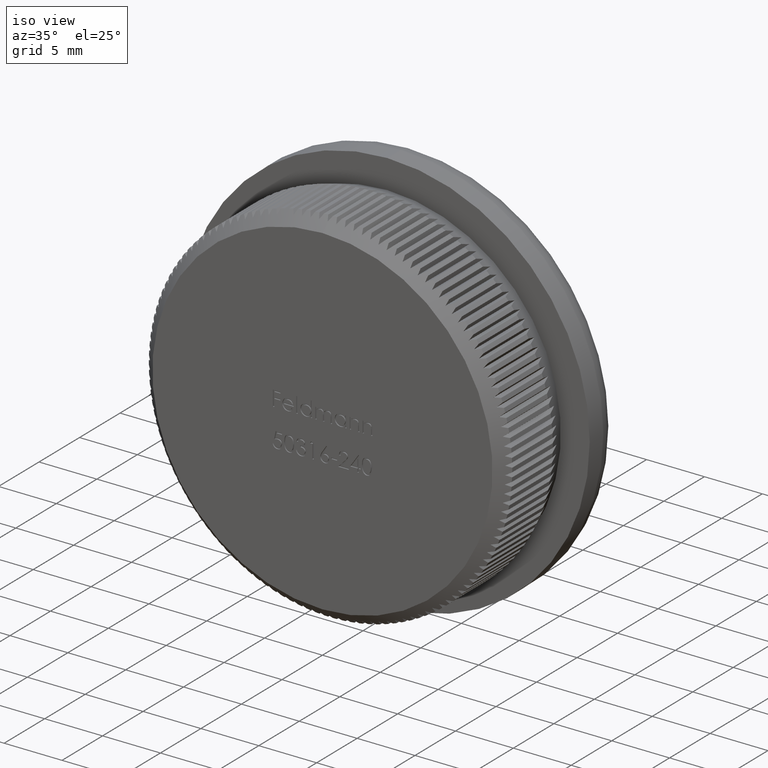
[diagram: clean part render]
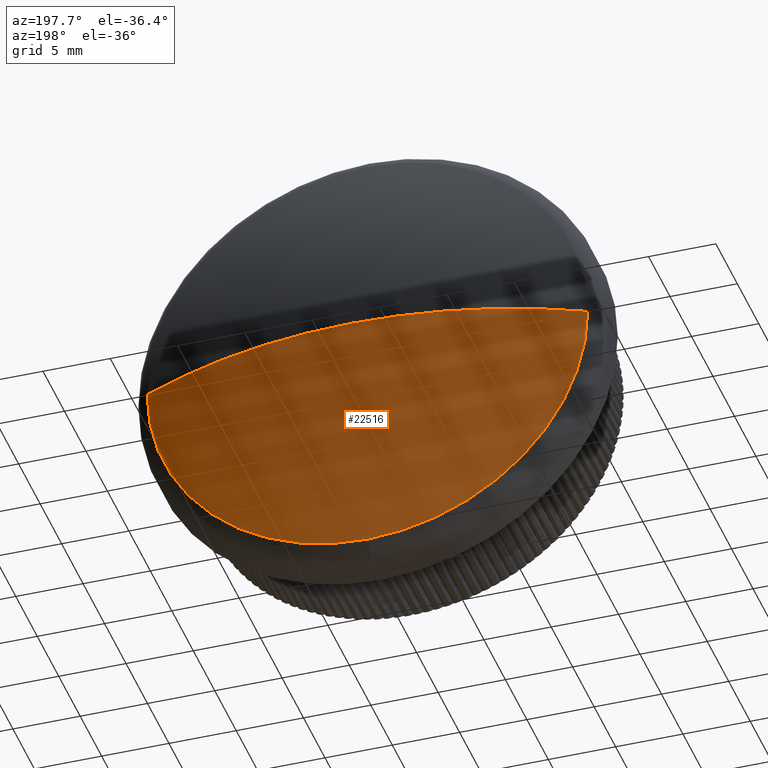
[diagram: tour spotlight — one face highlighted and labeled with its STEP entity id]
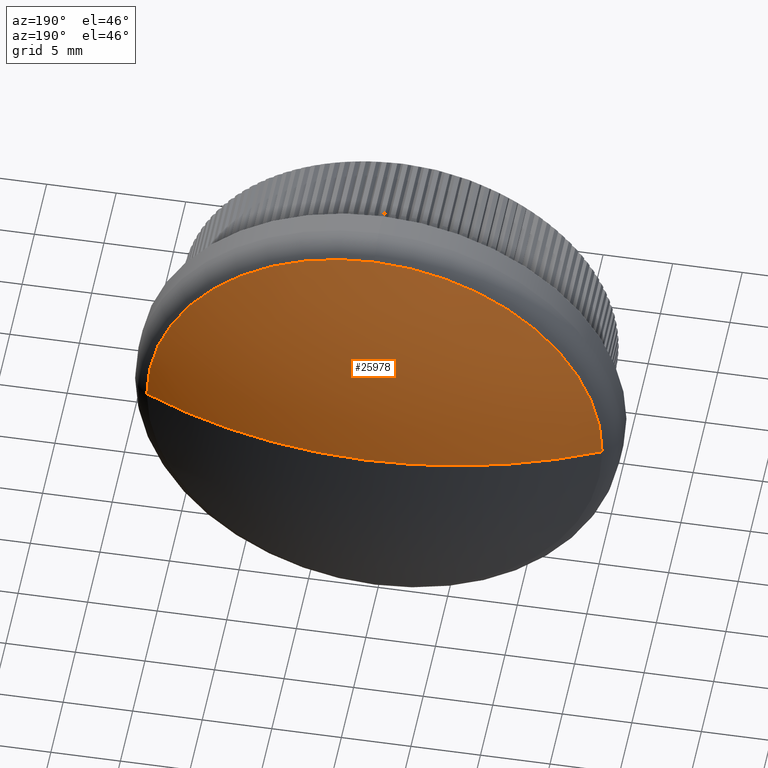
[diagram: tour spotlight — one face highlighted and labeled with its STEP entity id]
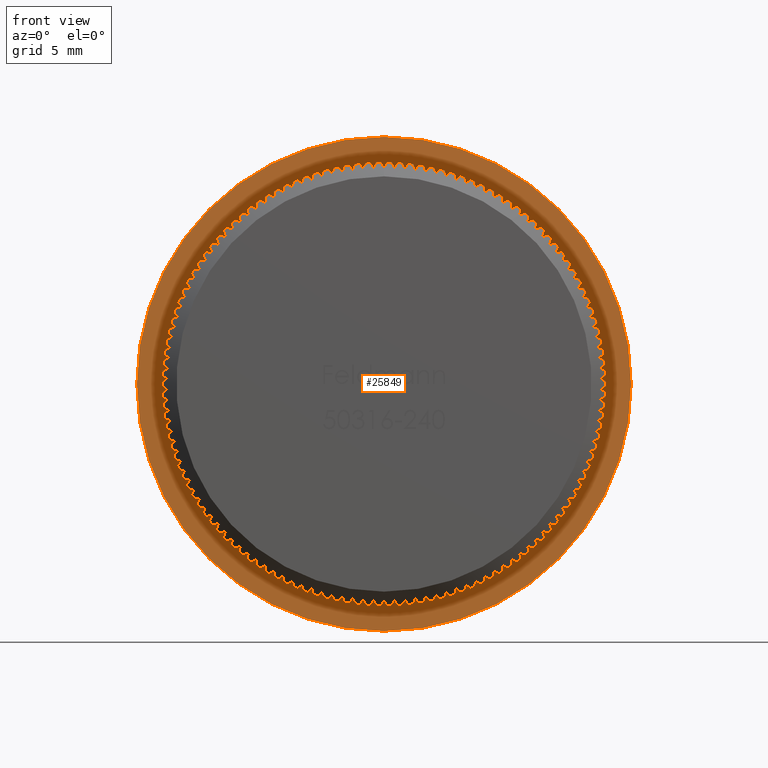
[diagram: tour spotlight — one face highlighted and labeled with its STEP entity id]
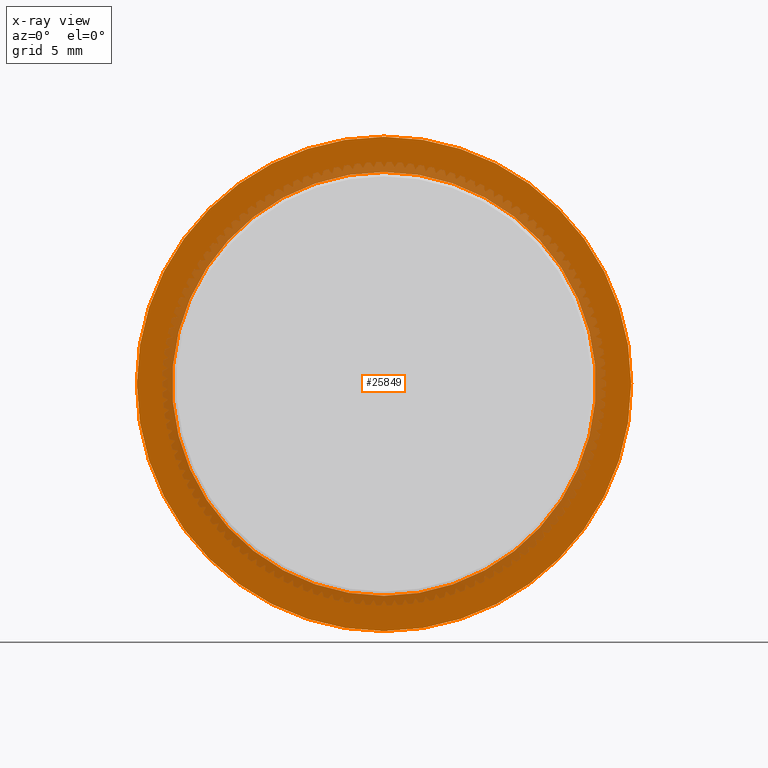
[diagram: x-ray of the same camera — body ghosted, this tour face saturated]
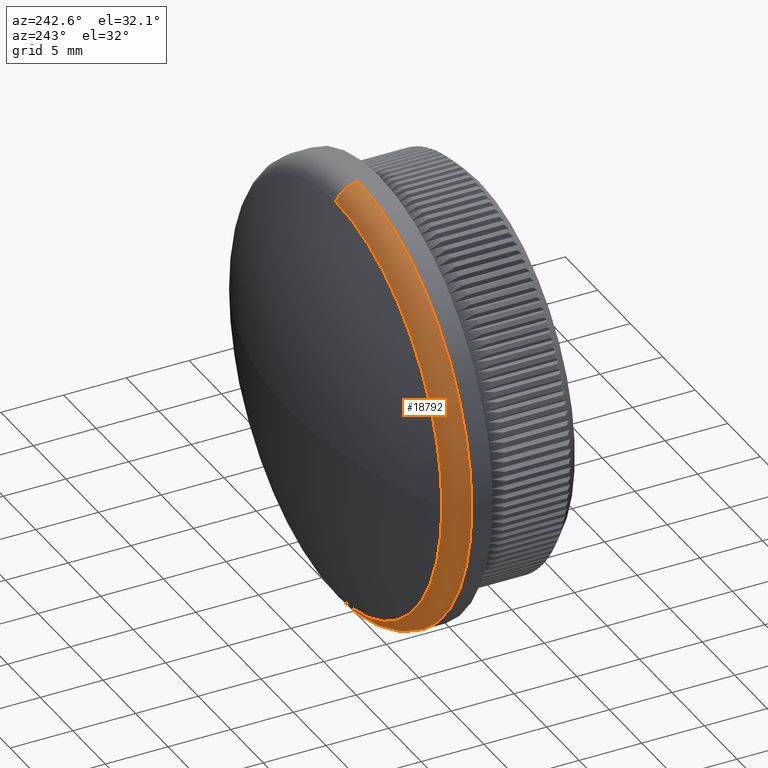
[diagram: tour spotlight — one face highlighted and labeled with its STEP entity id]
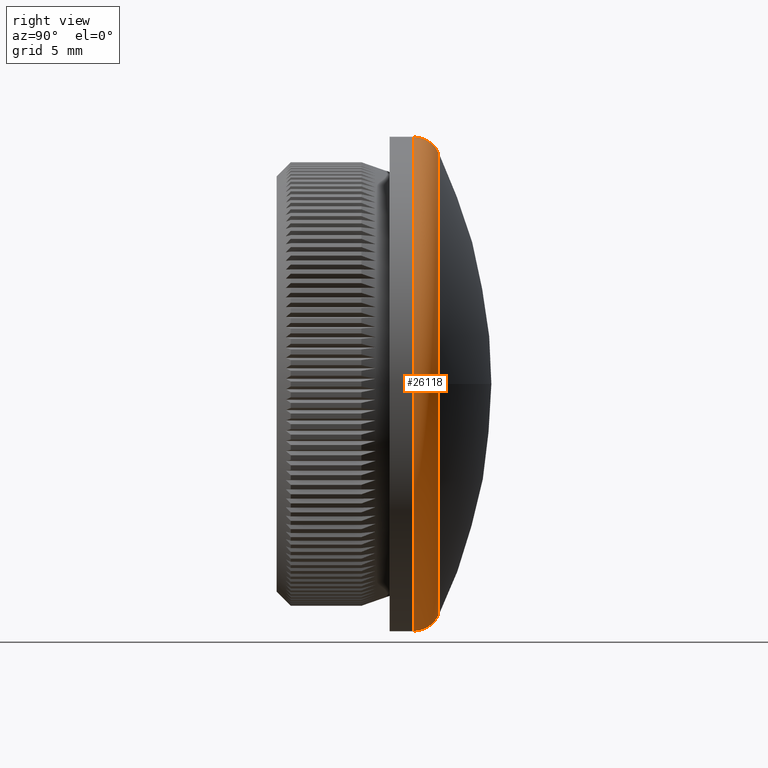
[diagram: tour spotlight — one face highlighted and labeled with its STEP entity id]
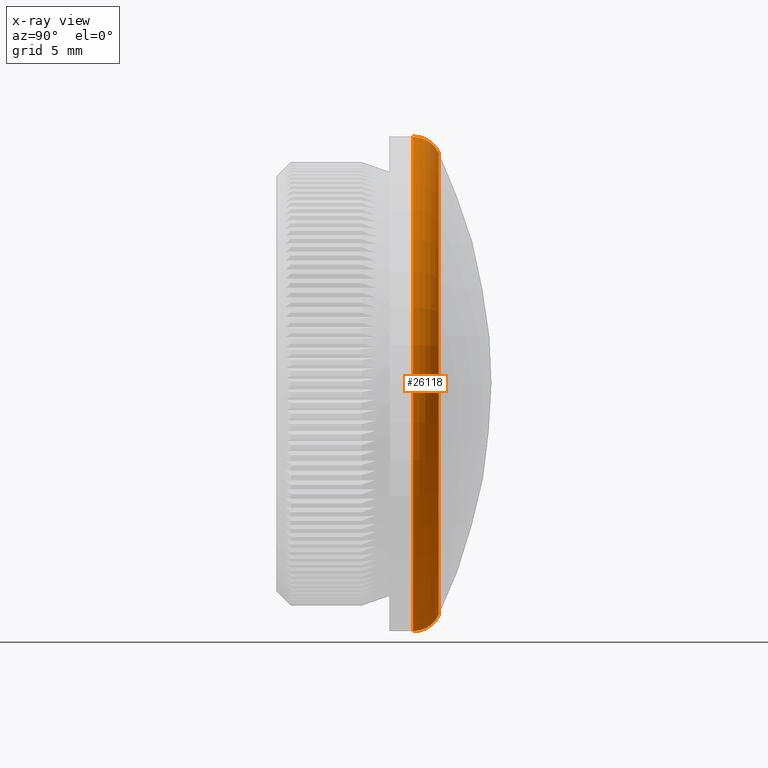
[diagram: x-ray of the same camera — body ghosted, this tour face saturated]
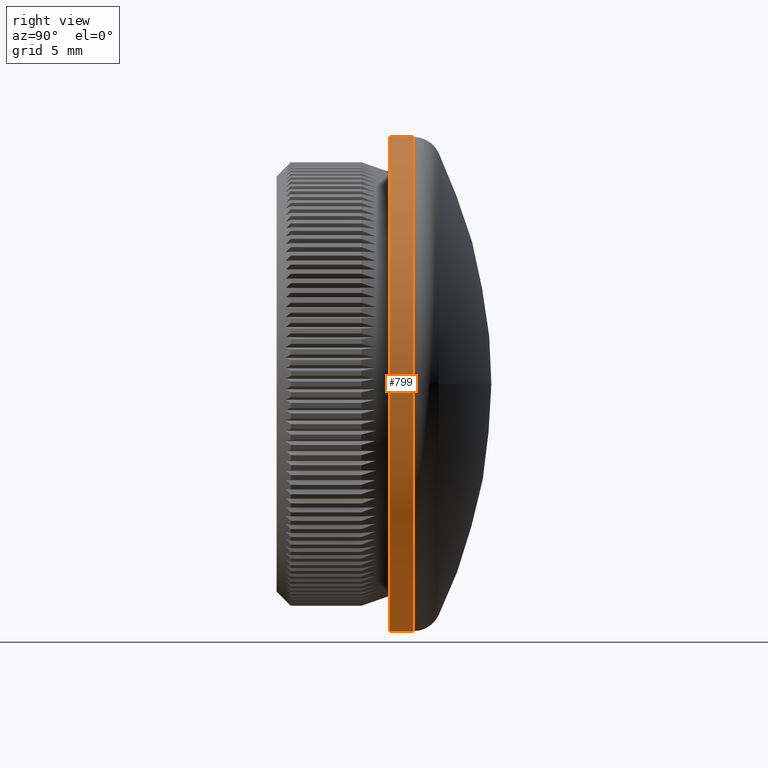
[diagram: tour spotlight — one face highlighted and labeled with its STEP entity id]
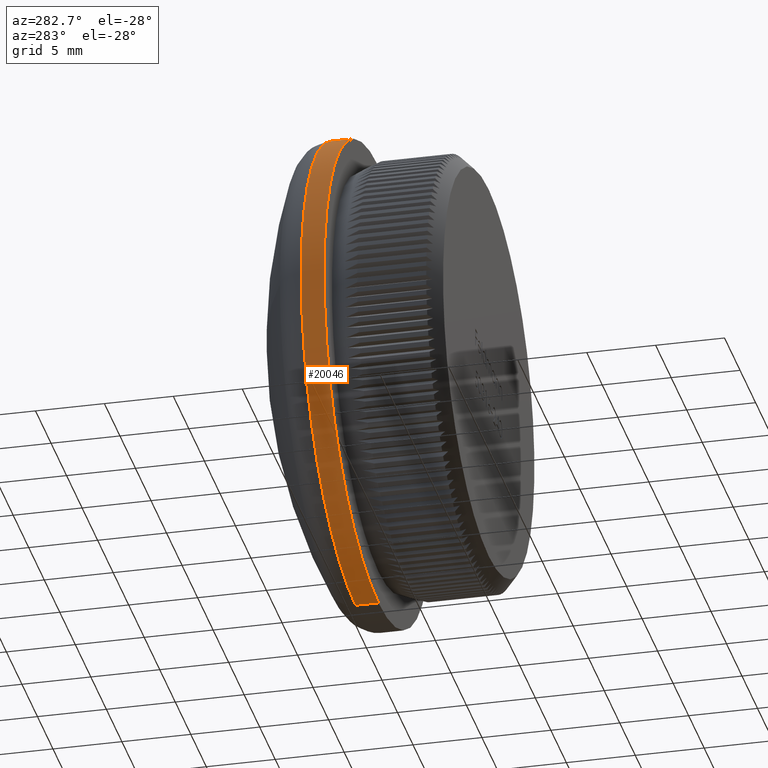
[diagram: tour spotlight — one face highlighted and labeled with its STEP entity id]
A machine part: a face-by-face anatomy tour. The part has 624 B-rep faces; the first image is the clean iso view, then the 7 largest visible faces are spotlighted one at a time (largest first), each with its STEP entity span.

Face 1 — auxiliary view, entity #22516. In plain terms, the highlighted spherical surface has radius 37.7605 mm.
Definition (entity closure, byte-faithful):
#971 = AXIS2_PLACEMENT_3D ( 'NONE', #16181, #3825, #7786 ) ;
#1554 = DIRECTION ( 'NONE',  ( 0.0000000000000000000, 0.0000000000000000000, -1.000000000000000000 ) ) ;
#1580 = ORIENTED_EDGE ( 'NONE', *, *, #24484, .T. ) ;
#3825 = DIRECTION ( 'NONE',  ( 1.224646799147353200E-016, -0.0000000000000000000, 1.000000000000000000 ) ) ;
#4260 = EDGE_CURVE ( 'NONE', #16829, #22731, #16046, .T. ) ;
#4436 = CARTESIAN_POINT ( 'NONE',  ( -16.36687910515705000, 11.46861060074418700, 2.004364610816228100E-015 ) ) ;
#4777 = SPHERICAL_SURFACE ( 'NONE', #22076, 37.76046511627907900 ) ;
#5413 = DIRECTION ( 'NONE',  ( 1.000000000000000000, 0.0000000000000000000, 0.0000000000000000000 ) ) ;
#5686 = CIRCLE ( 'NONE', #10601, 37.76046511627907900 ) ;
#7162 = VERTEX_POINT ( 'NONE', #23145 ) ;
#7786 = DIRECTION ( 'NONE',  ( 1.000000000000000000, 0.0000000000000000000, -1.224646799147353200E-016 ) ) ;
#7983 = DIRECTION ( 'NONE',  ( -1.000000000000000000, 0.0000000000000000000, 0.0000000000000000000 ) ) ;
#8258 = DIRECTION ( 'NONE',  ( 0.0000000000000000000, 0.0000000000000000000, -1.000000000000000000 ) ) ;
#8409 = CIRCLE ( 'NONE', #13013, 16.36687910515705000 ) ;
#9221 = ORIENTED_EDGE ( 'NONE', *, *, #4260, .T. ) ;
#10447 = CARTESIAN_POINT ( 'NONE',  ( 16.36687910515705000, 11.46861060074418700, 0.0000000000000000000 ) ) ;
#10601 = AXIS2_PLACEMENT_3D ( 'NONE', #16111, #8258, #7983 ) ;
#12440 = AXIS2_PLACEMENT_3D ( 'NONE', #23169, #21450, #19133 ) ;
#13013 = AXIS2_PLACEMENT_3D ( 'NONE', #15876, #23748, #1554 ) ;
#13549 = ORIENTED_EDGE ( 'NONE', *, *, #21309, .F. ) ;
#14720 = FACE_OUTER_BOUND ( 'NONE', #21016, .T. ) ;
#15876 = CARTESIAN_POINT ( 'NONE',  ( 0.0000000000000000000, 11.46861060074418700, 0.0000000000000000000 ) ) ;
#16046 = CIRCLE ( 'NONE', #12440, 16.36687910515705000 ) ;
#16111 = CARTESIAN_POINT ( 'NONE',  ( 0.0000000000000000000, -22.56046511627907900, 0.0000000000000000000 ) ) ;
#16181 = CARTESIAN_POINT ( 'NONE',  ( 0.0000000000000000000, -22.56046511627907900, 0.0000000000000000000 ) ) ;
#16443 = ORIENTED_EDGE ( 'NONE', *, *, #25428, .T. ) ;
#16829 = VERTEX_POINT ( 'NONE', #18148 ) ;
#18148 = CARTESIAN_POINT ( 'NONE',  ( 0.0000000000000000000, 11.46861060074418700, -16.36687910515705000 ) ) ;
#19043 = VERTEX_POINT ( 'NONE', #10447 ) ;
#19133 = DIRECTION ( 'NONE',  ( 0.0000000000000000000, 0.0000000000000000000, -1.000000000000000000 ) ) ;
#21016 = EDGE_LOOP ( 'NONE', ( #13549, #1580, #16443, #9221 ) ) ;
#21159 = CIRCLE ( 'NONE', #971, 37.76046511627907900 ) ;
#21309 = EDGE_CURVE ( 'NONE', #7162, #22731, #21159, .T. ) ;
#21438 = DIRECTION ( 'NONE',  ( 0.0000000000000000000, 0.0000000000000000000, 1.000000000000000000 ) ) ;
#21450 = DIRECTION ( 'NONE',  ( 0.0000000000000000000, 1.000000000000000000, 0.0000000000000000000 ) ) ;
#22076 = AXIS2_PLACEMENT_3D ( 'NONE', #23410, #21438, #5413 ) ;
#22516 = ADVANCED_FACE ( 'NONE', ( #14720 ), #4777, .T. ) ;
#22731 = VERTEX_POINT ( 'NONE', #4436 ) ;
#23145 = CARTESIAN_POINT ( 'NONE',  ( 2.312161636948322900E-015, 15.19999999999999800, 0.0000000000000000000 ) ) ;
#23169 = CARTESIAN_POINT ( 'NONE',  ( 0.0000000000000000000, 11.46861060074418700, 0.0000000000000000000 ) ) ;
#23410 = CARTESIAN_POINT ( 'NONE',  ( 0.0000000000000000000, -22.56046511627907900, 0.0000000000000000000 ) ) ;
#23748 = DIRECTION ( 'NONE',  ( 0.0000000000000000000, 1.000000000000000000, 0.0000000000000000000 ) ) ;
#24484 = EDGE_CURVE ( 'NONE', #7162, #19043, #5686, .T. ) ;
#25428 = EDGE_CURVE ( 'NONE', #19043, #16829, #8409, .T. ) ;

Face 2 — auxiliary view, entity #25978. In plain terms, the highlighted spherical surface has radius 37.7605 mm.
Definition (entity closure, byte-faithful):
#341 = ORIENTED_EDGE ( 'NONE', *, *, #25601, .T. ) ;
#464 = AXIS2_PLACEMENT_3D ( 'NONE', #2945, #23257, #2851 ) ;
#971 = AXIS2_PLACEMENT_3D ( 'NONE', #16181, #3825, #7786 ) ;
#1322 = SPHERICAL_SURFACE ( 'NONE', #19508, 37.76046511627907900 ) ;
#2851 = DIRECTION ( 'NONE',  ( 0.0000000000000000000, 0.0000000000000000000, -1.000000000000000000 ) ) ;
#2945 = CARTESIAN_POINT ( 'NONE',  ( 0.0000000000000000000, 11.46861060074418700, 0.0000000000000000000 ) ) ;
#3568 = VERTEX_POINT ( 'NONE', #9476 ) ;
#3825 = DIRECTION ( 'NONE',  ( 1.224646799147353200E-016, -0.0000000000000000000, 1.000000000000000000 ) ) ;
#4436 = CARTESIAN_POINT ( 'NONE',  ( -16.36687910515705000, 11.46861060074418700, 2.004364610816228100E-015 ) ) ;
#5686 = CIRCLE ( 'NONE', #10601, 37.76046511627907900 ) ;
#7162 = VERTEX_POINT ( 'NONE', #23145 ) ;
#7786 = DIRECTION ( 'NONE',  ( 1.000000000000000000, 0.0000000000000000000, -1.224646799147353200E-016 ) ) ;
#7983 = DIRECTION ( 'NONE',  ( -1.000000000000000000, 0.0000000000000000000, 0.0000000000000000000 ) ) ;
#8258 = DIRECTION ( 'NONE',  ( 0.0000000000000000000, 0.0000000000000000000, -1.000000000000000000 ) ) ;
#9059 = CIRCLE ( 'NONE', #12668, 16.36687910515705000 ) ;
#9476 = CARTESIAN_POINT ( 'NONE',  ( 2.073748254662047800E-015, 11.46861060074418700, 16.36687910515705000 ) ) ;
#9669 = CIRCLE ( 'NONE', #464, 16.36687910515705000 ) ;
#9902 = DIRECTION ( 'NONE',  ( 0.0000000000000000000, 0.0000000000000000000, 1.000000000000000000 ) ) ;
#10447 = CARTESIAN_POINT ( 'NONE',  ( 16.36687910515705000, 11.46861060074418700, 0.0000000000000000000 ) ) ;
#10601 = AXIS2_PLACEMENT_3D ( 'NONE', #16111, #8258, #7983 ) ;
#12668 = AXIS2_PLACEMENT_3D ( 'NONE', #14373, #20366, #20273 ) ;
#13906 = CARTESIAN_POINT ( 'NONE',  ( 0.0000000000000000000, -22.56046511627907900, 0.0000000000000000000 ) ) ;
#14373 = CARTESIAN_POINT ( 'NONE',  ( 0.0000000000000000000, 11.46861060074418700, 0.0000000000000000000 ) ) ;
#16111 = CARTESIAN_POINT ( 'NONE',  ( 0.0000000000000000000, -22.56046511627907900, 0.0000000000000000000 ) ) ;
#16137 = DIRECTION ( 'NONE',  ( 1.000000000000000000, 0.0000000000000000000, 0.0000000000000000000 ) ) ;
#16181 = CARTESIAN_POINT ( 'NONE',  ( 0.0000000000000000000, -22.56046511627907900, 0.0000000000000000000 ) ) ;
#19043 = VERTEX_POINT ( 'NONE', #10447 ) ;
#19508 = AXIS2_PLACEMENT_3D ( 'NONE', #13906, #9902, #16137 ) ;
#19830 = ORIENTED_EDGE ( 'NONE', *, *, #24484, .F. ) ;
#20095 = ORIENTED_EDGE ( 'NONE', *, *, #24770, .T. ) ;
#20273 = DIRECTION ( 'NONE',  ( 0.0000000000000000000, 0.0000000000000000000, -1.000000000000000000 ) ) ;
#20366 = DIRECTION ( 'NONE',  ( 0.0000000000000000000, 1.000000000000000000, 0.0000000000000000000 ) ) ;
#21159 = CIRCLE ( 'NONE', #971, 37.76046511627907900 ) ;
#21309 = EDGE_CURVE ( 'NONE', #7162, #22731, #21159, .T. ) ;
#22731 = VERTEX_POINT ( 'NONE', #4436 ) ;
#22793 = FACE_OUTER_BOUND ( 'NONE', #25958, .T. ) ;
#23145 = CARTESIAN_POINT ( 'NONE',  ( 2.312161636948322900E-015, 15.19999999999999800, 0.0000000000000000000 ) ) ;
#23257 = DIRECTION ( 'NONE',  ( 0.0000000000000000000, 1.000000000000000000, 0.0000000000000000000 ) ) ;
#24484 = EDGE_CURVE ( 'NONE', #7162, #19043, #5686, .T. ) ;
#24770 = EDGE_CURVE ( 'NONE', #22731, #3568, #9669, .T. ) ;
#25601 = EDGE_CURVE ( 'NONE', #3568, #19043, #9059, .T. ) ;
#25958 = EDGE_LOOP ( 'NONE', ( #19830, #26525, #20095, #341 ) ) ;
#25978 = ADVANCED_FACE ( 'NONE', ( #22793 ), #1322, .T. ) ;
#26525 = ORIENTED_EDGE ( 'NONE', *, *, #21309, .T. ) ;

Face 3 — front view, entity #25849. An x-ray twin of the same camera follows (body ghosted, this face saturated) — the face is partly hidden behind the body. In plain terms, the highlighted planar face has unit normal (0, -1, -0).
Definition (entity closure, byte-faithful):
#1292 = DIRECTION ( 'NONE',  ( 0.0000000000000000000, 0.0000000000000000000, -1.000000000000000000 ) ) ;
#1364 = CARTESIAN_POINT ( 'NONE',  ( 0.0000000000000000000, 8.000000000000000000, 0.0000000000000000000 ) ) ;
#1378 = PLANE ( 'NONE',  #2028 ) ;
#2028 = AXIS2_PLACEMENT_3D ( 'NONE', #23937, #19717, #1292 ) ;
#3591 = CIRCLE ( 'NONE', #14663, 15.00000000000000000 ) ;
#3669 = CIRCLE ( 'NONE', #9786, 17.50000000000000000 ) ;
#6263 = ORIENTED_EDGE ( 'NONE', *, *, #24410, .T. ) ;
#6793 = FACE_OUTER_BOUND ( 'NONE', #14042, .T. ) ;
#8419 = CARTESIAN_POINT ( 'NONE',  ( 0.0000000000000000000, 8.000000000000000000, 0.0000000000000000000 ) ) ;
#9600 = DIRECTION ( 'NONE',  ( 0.0000000000000000000, 0.0000000000000000000, -1.000000000000000000 ) ) ;
#9786 = AXIS2_PLACEMENT_3D ( 'NONE', #1364, #11658, #13440 ) ;
#9946 = ORIENTED_EDGE ( 'NONE', *, *, #10581, .T. ) ;
#10577 = VERTEX_POINT ( 'NONE', #18826 ) ;
#10581 = EDGE_CURVE ( 'NONE', #16179, #21092, #3669, .T. ) ;
#11222 = EDGE_CURVE ( 'NONE', #10577, #12666, #13273, .T. ) ;
#11658 = DIRECTION ( 'NONE',  ( -0.0000000000000000000, -1.000000000000000000, -0.0000000000000000000 ) ) ;
#12204 = CARTESIAN_POINT ( 'NONE',  ( 0.0000000000000000000, 8.000000000000000000, -17.50000000000000000 ) ) ;
#12666 = VERTEX_POINT ( 'NONE', #24882 ) ;
#13273 = CIRCLE ( 'NONE', #13366, 15.00000000000000000 ) ;
#13366 = AXIS2_PLACEMENT_3D ( 'NONE', #8419, #24789, #22651 ) ;
#13440 = DIRECTION ( 'NONE',  ( 0.0000000000000000000, 0.0000000000000000000, -1.000000000000000000 ) ) ;
#14042 = EDGE_LOOP ( 'NONE', ( #9946, #6263 ) ) ;
#14547 = DIRECTION ( 'NONE',  ( 0.0000000000000000000, 0.0000000000000000000, -1.000000000000000000 ) ) ;
#14663 = AXIS2_PLACEMENT_3D ( 'NONE', #20540, #18913, #14547 ) ;
#16024 = CARTESIAN_POINT ( 'NONE',  ( 0.0000000000000000000, 8.000000000000000000, 0.0000000000000000000 ) ) ;
#16179 = VERTEX_POINT ( 'NONE', #12204 ) ;
#16569 = CIRCLE ( 'NONE', #20539, 17.50000000000000000 ) ;
#16919 = EDGE_LOOP ( 'NONE', ( #22528, #18940 ) ) ;
#16997 = CARTESIAN_POINT ( 'NONE',  ( 2.143131898507868200E-015, 8.000000000000000000, 17.50000000000000000 ) ) ;
#17962 = FACE_BOUND ( 'NONE', #16919, .T. ) ;
#18826 = CARTESIAN_POINT ( 'NONE',  ( 0.0000000000000000000, 8.000000000000000000, -15.00000000000000000 ) ) ;
#18913 = DIRECTION ( 'NONE',  ( -0.0000000000000000000, -1.000000000000000000, -0.0000000000000000000 ) ) ;
#18940 = ORIENTED_EDGE ( 'NONE', *, *, #19026, .F. ) ;
#19026 = EDGE_CURVE ( 'NONE', #12666, #10577, #3591, .T. ) ;
#19717 = DIRECTION ( 'NONE',  ( 0.0000000000000000000, -1.000000000000000000, -0.0000000000000000000 ) ) ;
#20539 = AXIS2_PLACEMENT_3D ( 'NONE', #16024, #21847, #9600 ) ;
#20540 = CARTESIAN_POINT ( 'NONE',  ( 0.0000000000000000000, 8.000000000000000000, 0.0000000000000000000 ) ) ;
#21092 = VERTEX_POINT ( 'NONE', #16997 ) ;
#21847 = DIRECTION ( 'NONE',  ( -0.0000000000000000000, -1.000000000000000000, -0.0000000000000000000 ) ) ;
#22528 = ORIENTED_EDGE ( 'NONE', *, *, #11222, .F. ) ;
#22651 = DIRECTION ( 'NONE',  ( 0.0000000000000000000, 0.0000000000000000000, -1.000000000000000000 ) ) ;
#23937 = CARTESIAN_POINT ( 'NONE',  ( 15.00000000000000000, 8.000000000000000000, 0.0000000000000000000 ) ) ;
#24410 = EDGE_CURVE ( 'NONE', #21092, #16179, #16569, .T. ) ;
#24789 = DIRECTION ( 'NONE',  ( -0.0000000000000000000, -1.000000000000000000, -0.0000000000000000000 ) ) ;
#24882 = CARTESIAN_POINT ( 'NONE',  ( 1.879832836691187100E-015, 8.000000000000000000, 15.00000000000000000 ) ) ;
#25849 = ADVANCED_FACE ( 'NONE', ( #6793, #17962 ), #1378, .T. ) ;

Face 4 — auxiliary view, entity #18792. In plain terms, the highlighted toroidal blend (fillet) surface has major radius 15.5 mm and minor (blend) radius 2 mm.
Definition (entity closure, byte-faithful):
#464 = AXIS2_PLACEMENT_3D ( 'NONE', #2945, #23257, #2851 ) ;
#2844 = CIRCLE ( 'NONE', #3872, 17.49999999999999600 ) ;
#2851 = DIRECTION ( 'NONE',  ( 0.0000000000000000000, 0.0000000000000000000, -1.000000000000000000 ) ) ;
#2945 = CARTESIAN_POINT ( 'NONE',  ( 0.0000000000000000000, 11.46861060074418700, 0.0000000000000000000 ) ) ;
#3568 = VERTEX_POINT ( 'NONE', #9476 ) ;
#3619 = DIRECTION ( 'NONE',  ( 0.0000000000000000000, 0.0000000000000000000, -1.000000000000000000 ) ) ;
#3872 = AXIS2_PLACEMENT_3D ( 'NONE', #19921, #21914, #5709 ) ;
#4260 = EDGE_CURVE ( 'NONE', #16829, #22731, #16046, .T. ) ;
#4436 = CARTESIAN_POINT ( 'NONE',  ( -16.36687910515705000, 11.46861060074418700, 2.004364610816228100E-015 ) ) ;
#5001 = CIRCLE ( 'NONE', #14037, 2.000000000000000000 ) ;
#5537 = DIRECTION ( 'NONE',  ( 1.000000000000000000, 0.0000000000000000000, -1.224646799147353200E-016 ) ) ;
#5597 = CARTESIAN_POINT ( 'NONE',  ( 0.0000000000000000000, 9.666245316723740500, -17.49999999999999600 ) ) ;
#5709 = DIRECTION ( 'NONE',  ( 0.0000000000000000000, 0.0000000000000000000, -1.000000000000000000 ) ) ;
#7009 = EDGE_CURVE ( 'NONE', #24758, #25927, #2844, .T. ) ;
#8246 = CIRCLE ( 'NONE', #12045, 2.000000000000000000 ) ;
#9100 = FACE_OUTER_BOUND ( 'NONE', #14804, .T. ) ;
#9476 = CARTESIAN_POINT ( 'NONE',  ( 2.073748254662047800E-015, 11.46861060074418700, 16.36687910515705000 ) ) ;
#9492 = DIRECTION ( 'NONE',  ( -1.224646799147353500E-016, 0.0000000000000000000, -1.000000000000000000 ) ) ;
#9515 = EDGE_CURVE ( 'NONE', #3568, #24758, #5001, .T. ) ;
#9669 = CIRCLE ( 'NONE', #464, 16.36687910515705000 ) ;
#9919 = DIRECTION ( 'NONE',  ( -1.000000000000000000, 0.0000000000000000000, 0.0000000000000000000 ) ) ;
#10559 = AXIS2_PLACEMENT_3D ( 'NONE', #11785, #19913, #3619 ) ;
#11785 = CARTESIAN_POINT ( 'NONE',  ( 0.0000000000000000000, 9.666245316723740500, 0.0000000000000000000 ) ) ;
#12045 = AXIS2_PLACEMENT_3D ( 'NONE', #12141, #9919, #16245 ) ;
#12080 = ORIENTED_EDGE ( 'NONE', *, *, #7009, .F. ) ;
#12141 = CARTESIAN_POINT ( 'NONE',  ( 0.0000000000000000000, 9.666245316723740500, -15.49999999999999800 ) ) ;
#12440 = AXIS2_PLACEMENT_3D ( 'NONE', #23169, #21450, #19133 ) ;
#13002 = EDGE_CURVE ( 'NONE', #16829, #25927, #8246, .T. ) ;
#13757 = CARTESIAN_POINT ( 'NONE',  ( 1.898202538678397200E-015, 9.666245316723740500, 15.49999999999999800 ) ) ;
#14037 = AXIS2_PLACEMENT_3D ( 'NONE', #13757, #5537, #9492 ) ;
#14804 = EDGE_LOOP ( 'NONE', ( #19871, #15458, #19967, #23239, #12080 ) ) ;
#15274 = CARTESIAN_POINT ( 'NONE',  ( 2.143131898507867900E-015, 9.666245316723740500, 17.49999999999999600 ) ) ;
#15458 = ORIENTED_EDGE ( 'NONE', *, *, #24770, .F. ) ;
#16046 = CIRCLE ( 'NONE', #12440, 16.36687910515705000 ) ;
#16245 = DIRECTION ( 'NONE',  ( 0.0000000000000000000, 0.0000000000000000000, 1.000000000000000000 ) ) ;
#16829 = VERTEX_POINT ( 'NONE', #18148 ) ;
#18148 = CARTESIAN_POINT ( 'NONE',  ( 0.0000000000000000000, 11.46861060074418700, -16.36687910515705000 ) ) ;
#18792 = ADVANCED_FACE ( 'NONE', ( #9100 ), #24774, .T. ) ;
#19133 = DIRECTION ( 'NONE',  ( 0.0000000000000000000, 0.0000000000000000000, -1.000000000000000000 ) ) ;
#19871 = ORIENTED_EDGE ( 'NONE', *, *, #9515, .F. ) ;
#19913 = DIRECTION ( 'NONE',  ( -0.0000000000000000000, -1.000000000000000000, -0.0000000000000000000 ) ) ;
#19921 = CARTESIAN_POINT ( 'NONE',  ( 0.0000000000000000000, 9.666245316723740500, 0.0000000000000000000 ) ) ;
#19967 = ORIENTED_EDGE ( 'NONE', *, *, #4260, .F. ) ;
#21450 = DIRECTION ( 'NONE',  ( 0.0000000000000000000, 1.000000000000000000, 0.0000000000000000000 ) ) ;
#21914 = DIRECTION ( 'NONE',  ( -0.0000000000000000000, -1.000000000000000000, -0.0000000000000000000 ) ) ;
#22731 = VERTEX_POINT ( 'NONE', #4436 ) ;
#23169 = CARTESIAN_POINT ( 'NONE',  ( 0.0000000000000000000, 11.46861060074418700, 0.0000000000000000000 ) ) ;
#23239 = ORIENTED_EDGE ( 'NONE', *, *, #13002, .T. ) ;
#23257 = DIRECTION ( 'NONE',  ( 0.0000000000000000000, 1.000000000000000000, 0.0000000000000000000 ) ) ;
#24758 = VERTEX_POINT ( 'NONE', #15274 ) ;
#24770 = EDGE_CURVE ( 'NONE', #22731, #3568, #9669, .T. ) ;
#24774 = TOROIDAL_SURFACE ( 'NONE', #10559, 15.49999999999999800, 2.000000000000000000 ) ;
#25927 = VERTEX_POINT ( 'NONE', #5597 ) ;

Face 5 — right view, entity #26118. An x-ray twin of the same camera follows (body ghosted, this face saturated) — the face is partly hidden behind the body. In plain terms, the highlighted toroidal blend (fillet) surface has major radius 15.5 mm and minor (blend) radius 2 mm.
Definition (entity closure, byte-faithful):
#1554 = DIRECTION ( 'NONE',  ( 0.0000000000000000000, 0.0000000000000000000, -1.000000000000000000 ) ) ;
#1649 = ORIENTED_EDGE ( 'NONE', *, *, #9515, .T. ) ;
#2027 = DIRECTION ( 'NONE',  ( 0.0000000000000000000, 0.0000000000000000000, -1.000000000000000000 ) ) ;
#2265 = CARTESIAN_POINT ( 'NONE',  ( 0.0000000000000000000, 9.666245316723740500, 0.0000000000000000000 ) ) ;
#2491 = EDGE_CURVE ( 'NONE', #25927, #24758, #25657, .T. ) ;
#3568 = VERTEX_POINT ( 'NONE', #9476 ) ;
#3914 = AXIS2_PLACEMENT_3D ( 'NONE', #2265, #20437, #18387 ) ;
#4887 = ORIENTED_EDGE ( 'NONE', *, *, #13002, .F. ) ;
#5001 = CIRCLE ( 'NONE', #14037, 2.000000000000000000 ) ;
#5537 = DIRECTION ( 'NONE',  ( 1.000000000000000000, 0.0000000000000000000, -1.224646799147353200E-016 ) ) ;
#5597 = CARTESIAN_POINT ( 'NONE',  ( 0.0000000000000000000, 9.666245316723740500, -17.49999999999999600 ) ) ;
#6279 = ORIENTED_EDGE ( 'NONE', *, *, #25601, .F. ) ;
#7958 = EDGE_LOOP ( 'NONE', ( #6279, #1649, #8802, #4887, #16328 ) ) ;
#8246 = CIRCLE ( 'NONE', #12045, 2.000000000000000000 ) ;
#8409 = CIRCLE ( 'NONE', #13013, 16.36687910515705000 ) ;
#8802 = ORIENTED_EDGE ( 'NONE', *, *, #2491, .F. ) ;
#9059 = CIRCLE ( 'NONE', #12668, 16.36687910515705000 ) ;
#9476 = CARTESIAN_POINT ( 'NONE',  ( 2.073748254662047800E-015, 11.46861060074418700, 16.36687910515705000 ) ) ;
#9492 = DIRECTION ( 'NONE',  ( -1.224646799147353500E-016, 0.0000000000000000000, -1.000000000000000000 ) ) ;
#9515 = EDGE_CURVE ( 'NONE', #3568, #24758, #5001, .T. ) ;
#9919 = DIRECTION ( 'NONE',  ( -1.000000000000000000, 0.0000000000000000000, 0.0000000000000000000 ) ) ;
#10447 = CARTESIAN_POINT ( 'NONE',  ( 16.36687910515705000, 11.46861060074418700, 0.0000000000000000000 ) ) ;
#12045 = AXIS2_PLACEMENT_3D ( 'NONE', #12141, #9919, #16245 ) ;
#12141 = CARTESIAN_POINT ( 'NONE',  ( 0.0000000000000000000, 9.666245316723740500, -15.49999999999999800 ) ) ;
#12668 = AXIS2_PLACEMENT_3D ( 'NONE', #14373, #20366, #20273 ) ;
#13002 = EDGE_CURVE ( 'NONE', #16829, #25927, #8246, .T. ) ;
#13013 = AXIS2_PLACEMENT_3D ( 'NONE', #15876, #23748, #1554 ) ;
#13757 = CARTESIAN_POINT ( 'NONE',  ( 1.898202538678397200E-015, 9.666245316723740500, 15.49999999999999800 ) ) ;
#14037 = AXIS2_PLACEMENT_3D ( 'NONE', #13757, #5537, #9492 ) ;
#14373 = CARTESIAN_POINT ( 'NONE',  ( 0.0000000000000000000, 11.46861060074418700, 0.0000000000000000000 ) ) ;
#14383 = CARTESIAN_POINT ( 'NONE',  ( 0.0000000000000000000, 9.666245316723740500, 0.0000000000000000000 ) ) ;
#14455 = TOROIDAL_SURFACE ( 'NONE', #3914, 15.49999999999999800, 2.000000000000000000 ) ;
#15274 = CARTESIAN_POINT ( 'NONE',  ( 2.143131898507867900E-015, 9.666245316723740500, 17.49999999999999600 ) ) ;
#15876 = CARTESIAN_POINT ( 'NONE',  ( 0.0000000000000000000, 11.46861060074418700, 0.0000000000000000000 ) ) ;
#16245 = DIRECTION ( 'NONE',  ( 0.0000000000000000000, 0.0000000000000000000, 1.000000000000000000 ) ) ;
#16328 = ORIENTED_EDGE ( 'NONE', *, *, #25428, .F. ) ;
#16829 = VERTEX_POINT ( 'NONE', #18148 ) ;
#18148 = CARTESIAN_POINT ( 'NONE',  ( 0.0000000000000000000, 11.46861060074418700, -16.36687910515705000 ) ) ;
#18387 = DIRECTION ( 'NONE',  ( 0.0000000000000000000, 0.0000000000000000000, -1.000000000000000000 ) ) ;
#19043 = VERTEX_POINT ( 'NONE', #10447 ) ;
#20273 = DIRECTION ( 'NONE',  ( 0.0000000000000000000, 0.0000000000000000000, -1.000000000000000000 ) ) ;
#20366 = DIRECTION ( 'NONE',  ( 0.0000000000000000000, 1.000000000000000000, 0.0000000000000000000 ) ) ;
#20437 = DIRECTION ( 'NONE',  ( -0.0000000000000000000, -1.000000000000000000, -0.0000000000000000000 ) ) ;
#21325 = AXIS2_PLACEMENT_3D ( 'NONE', #14383, #24689, #2027 ) ;
#22484 = FACE_OUTER_BOUND ( 'NONE', #7958, .T. ) ;
#23748 = DIRECTION ( 'NONE',  ( 0.0000000000000000000, 1.000000000000000000, 0.0000000000000000000 ) ) ;
#24689 = DIRECTION ( 'NONE',  ( -0.0000000000000000000, -1.000000000000000000, -0.0000000000000000000 ) ) ;
#24758 = VERTEX_POINT ( 'NONE', #15274 ) ;
#25428 = EDGE_CURVE ( 'NONE', #19043, #16829, #8409, .T. ) ;
#25601 = EDGE_CURVE ( 'NONE', #3568, #19043, #9059, .T. ) ;
#25657 = CIRCLE ( 'NONE', #21325, 17.49999999999999600 ) ;
#25927 = VERTEX_POINT ( 'NONE', #5597 ) ;
#26118 = ADVANCED_FACE ( 'NONE', ( #22484 ), #14455, .T. ) ;

Face 6 — right view, entity #799. In plain terms, the highlighted cylindrical surface (partial cylindrical patch) has radius 17.5 mm, axis along (-0, -1, -0).
Definition (entity closure, byte-faithful):
#267 = EDGE_LOOP ( 'NONE', ( #18354, #4941, #12673, #18065 ) ) ;
#799 = ADVANCED_FACE ( 'NONE', ( #19602 ), #5850, .T. ) ;
#1093 = CARTESIAN_POINT ( 'NONE',  ( 0.0000000000000000000, 0.0000000000000000000, -17.49999999999999600 ) ) ;
#1364 = CARTESIAN_POINT ( 'NONE',  ( 0.0000000000000000000, 8.000000000000000000, 0.0000000000000000000 ) ) ;
#2027 = DIRECTION ( 'NONE',  ( 0.0000000000000000000, 0.0000000000000000000, -1.000000000000000000 ) ) ;
#2491 = EDGE_CURVE ( 'NONE', #25927, #24758, #25657, .T. ) ;
#3669 = CIRCLE ( 'NONE', #9786, 17.50000000000000000 ) ;
#4941 = ORIENTED_EDGE ( 'NONE', *, *, #20798, .T. ) ;
#5597 = CARTESIAN_POINT ( 'NONE',  ( 0.0000000000000000000, 9.666245316723740500, -17.49999999999999600 ) ) ;
#5850 = CYLINDRICAL_SURFACE ( 'NONE', #24381, 17.49999999999999600 ) ;
#7413 = DIRECTION ( 'NONE',  ( -0.0000000000000000000, -1.000000000000000000, -0.0000000000000000000 ) ) ;
#8688 = VECTOR ( 'NONE', #7413, 1000.000000000000000 ) ;
#9679 = CARTESIAN_POINT ( 'NONE',  ( 0.0000000000000000000, 0.0000000000000000000, 0.0000000000000000000 ) ) ;
#9786 = AXIS2_PLACEMENT_3D ( 'NONE', #1364, #11658, #13440 ) ;
#10581 = EDGE_CURVE ( 'NONE', #16179, #21092, #3669, .T. ) ;
#11658 = DIRECTION ( 'NONE',  ( -0.0000000000000000000, -1.000000000000000000, -0.0000000000000000000 ) ) ;
#12204 = CARTESIAN_POINT ( 'NONE',  ( 0.0000000000000000000, 8.000000000000000000, -17.50000000000000000 ) ) ;
#12673 = ORIENTED_EDGE ( 'NONE', *, *, #10581, .F. ) ;
#13440 = DIRECTION ( 'NONE',  ( 0.0000000000000000000, 0.0000000000000000000, -1.000000000000000000 ) ) ;
#13484 = CARTESIAN_POINT ( 'NONE',  ( 2.143131898507867900E-015, 0.0000000000000000000, 17.49999999999999600 ) ) ;
#13737 = VECTOR ( 'NONE', #17727, 1000.000000000000000 ) ;
#14383 = CARTESIAN_POINT ( 'NONE',  ( 0.0000000000000000000, 9.666245316723740500, 0.0000000000000000000 ) ) ;
#15274 = CARTESIAN_POINT ( 'NONE',  ( 2.143131898507867900E-015, 9.666245316723740500, 17.49999999999999600 ) ) ;
#15470 = DIRECTION ( 'NONE',  ( -0.0000000000000000000, -1.000000000000000000, -0.0000000000000000000 ) ) ;
#15559 = DIRECTION ( 'NONE',  ( 0.0000000000000000000, 0.0000000000000000000, -1.000000000000000000 ) ) ;
#16179 = VERTEX_POINT ( 'NONE', #12204 ) ;
#16997 = CARTESIAN_POINT ( 'NONE',  ( 2.143131898507868200E-015, 8.000000000000000000, 17.50000000000000000 ) ) ;
#17727 = DIRECTION ( 'NONE',  ( -0.0000000000000000000, -1.000000000000000000, -0.0000000000000000000 ) ) ;
#18065 = ORIENTED_EDGE ( 'NONE', *, *, #22180, .F. ) ;
#18354 = ORIENTED_EDGE ( 'NONE', *, *, #2491, .T. ) ;
#19602 = FACE_OUTER_BOUND ( 'NONE', #267, .T. ) ;
#20798 = EDGE_CURVE ( 'NONE', #24758, #21092, #25325, .T. ) ;
#21092 = VERTEX_POINT ( 'NONE', #16997 ) ;
#21325 = AXIS2_PLACEMENT_3D ( 'NONE', #14383, #24689, #2027 ) ;
#22180 = EDGE_CURVE ( 'NONE', #25927, #16179, #25592, .T. ) ;
#24381 = AXIS2_PLACEMENT_3D ( 'NONE', #9679, #15470, #15559 ) ;
#24689 = DIRECTION ( 'NONE',  ( -0.0000000000000000000, -1.000000000000000000, -0.0000000000000000000 ) ) ;
#24758 = VERTEX_POINT ( 'NONE', #15274 ) ;
#25325 = LINE ( 'NONE', #13484, #8688 ) ;
#25592 = LINE ( 'NONE', #1093, #13737 ) ;
#25657 = CIRCLE ( 'NONE', #21325, 17.49999999999999600 ) ;
#25927 = VERTEX_POINT ( 'NONE', #5597 ) ;

Face 7 — auxiliary view, entity #20046. In plain terms, the highlighted cylindrical surface (partial cylindrical patch) has radius 17.5 mm, axis along (-0, -1, -0).
Definition (entity closure, byte-faithful):
#1093 = CARTESIAN_POINT ( 'NONE',  ( 0.0000000000000000000, 0.0000000000000000000, -17.49999999999999600 ) ) ;
#2844 = CIRCLE ( 'NONE', #3872, 17.49999999999999600 ) ;
#3872 = AXIS2_PLACEMENT_3D ( 'NONE', #19921, #21914, #5709 ) ;
#4097 = CARTESIAN_POINT ( 'NONE',  ( 0.0000000000000000000, 0.0000000000000000000, 0.0000000000000000000 ) ) ;
#5597 = CARTESIAN_POINT ( 'NONE',  ( 0.0000000000000000000, 9.666245316723740500, -17.49999999999999600 ) ) ;
#5709 = DIRECTION ( 'NONE',  ( 0.0000000000000000000, 0.0000000000000000000, -1.000000000000000000 ) ) ;
#7009 = EDGE_CURVE ( 'NONE', #24758, #25927, #2844, .T. ) ;
#7413 = DIRECTION ( 'NONE',  ( -0.0000000000000000000, -1.000000000000000000, -0.0000000000000000000 ) ) ;
#8487 = EDGE_LOOP ( 'NONE', ( #8489, #13553, #15599, #21928 ) ) ;
#8489 = ORIENTED_EDGE ( 'NONE', *, *, #20798, .F. ) ;
#8506 = DIRECTION ( 'NONE',  ( -0.0000000000000000000, -1.000000000000000000, -0.0000000000000000000 ) ) ;
#8688 = VECTOR ( 'NONE', #7413, 1000.000000000000000 ) ;
#9369 = CYLINDRICAL_SURFACE ( 'NONE', #10407, 17.49999999999999600 ) ;
#9600 = DIRECTION ( 'NONE',  ( 0.0000000000000000000, 0.0000000000000000000, -1.000000000000000000 ) ) ;
#10407 = AXIS2_PLACEMENT_3D ( 'NONE', #4097, #8506, #12256 ) ;
#12204 = CARTESIAN_POINT ( 'NONE',  ( 0.0000000000000000000, 8.000000000000000000, -17.50000000000000000 ) ) ;
#12256 = DIRECTION ( 'NONE',  ( 0.0000000000000000000, 0.0000000000000000000, -1.000000000000000000 ) ) ;
#13484 = CARTESIAN_POINT ( 'NONE',  ( 2.143131898507867900E-015, 0.0000000000000000000, 17.49999999999999600 ) ) ;
#13553 = ORIENTED_EDGE ( 'NONE', *, *, #7009, .T. ) ;
#13737 = VECTOR ( 'NONE', #17727, 1000.000000000000000 ) ;
#15274 = CARTESIAN_POINT ( 'NONE',  ( 2.143131898507867900E-015, 9.666245316723740500, 17.49999999999999600 ) ) ;
#15599 = ORIENTED_EDGE ( 'NONE', *, *, #22180, .T. ) ;
#16024 = CARTESIAN_POINT ( 'NONE',  ( 0.0000000000000000000, 8.000000000000000000, 0.0000000000000000000 ) ) ;
#16179 = VERTEX_POINT ( 'NONE', #12204 ) ;
#16569 = CIRCLE ( 'NONE', #20539, 17.50000000000000000 ) ;
#16997 = CARTESIAN_POINT ( 'NONE',  ( 2.143131898507868200E-015, 8.000000000000000000, 17.50000000000000000 ) ) ;
#17727 = DIRECTION ( 'NONE',  ( -0.0000000000000000000, -1.000000000000000000, -0.0000000000000000000 ) ) ;
#19921 = CARTESIAN_POINT ( 'NONE',  ( 0.0000000000000000000, 9.666245316723740500, 0.0000000000000000000 ) ) ;
#20046 = ADVANCED_FACE ( 'NONE', ( #25054 ), #9369, .T. ) ;
#20539 = AXIS2_PLACEMENT_3D ( 'NONE', #16024, #21847, #9600 ) ;
#20798 = EDGE_CURVE ( 'NONE', #24758, #21092, #25325, .T. ) ;
#21092 = VERTEX_POINT ( 'NONE', #16997 ) ;
#21847 = DIRECTION ( 'NONE',  ( -0.0000000000000000000, -1.000000000000000000, -0.0000000000000000000 ) ) ;
#21914 = DIRECTION ( 'NONE',  ( -0.0000000000000000000, -1.000000000000000000, -0.0000000000000000000 ) ) ;
#21928 = ORIENTED_EDGE ( 'NONE', *, *, #24410, .F. ) ;
#22180 = EDGE_CURVE ( 'NONE', #25927, #16179, #25592, .T. ) ;
#24410 = EDGE_CURVE ( 'NONE', #21092, #16179, #16569, .T. ) ;
#24758 = VERTEX_POINT ( 'NONE', #15274 ) ;
#25054 = FACE_OUTER_BOUND ( 'NONE', #8487, .T. ) ;
#25325 = LINE ( 'NONE', #13484, #8688 ) ;
#25592 = LINE ( 'NONE', #1093, #13737 ) ;
#25927 = VERTEX_POINT ( 'NONE', #5597 ) ;